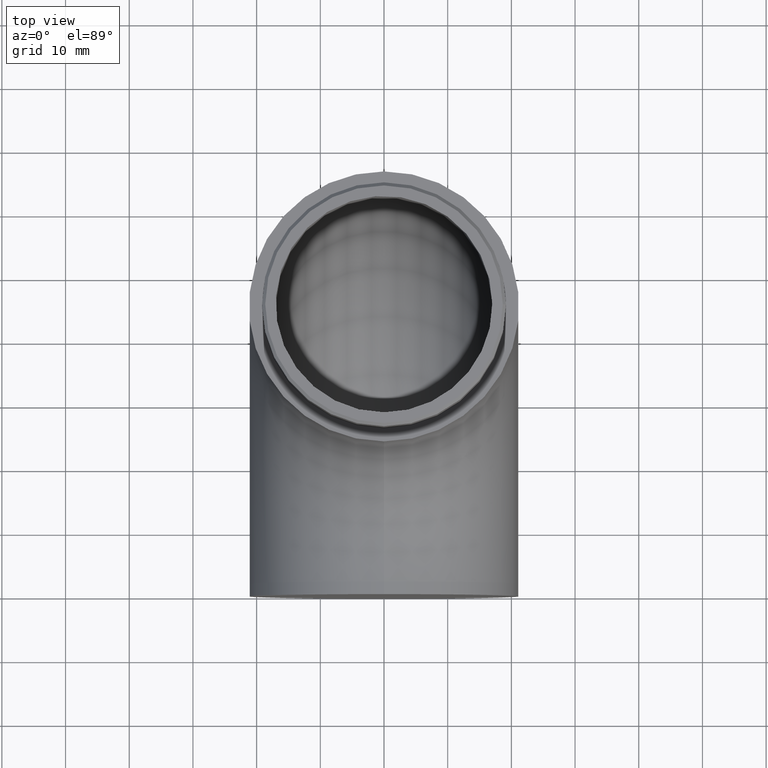
[diagram: clean part render]
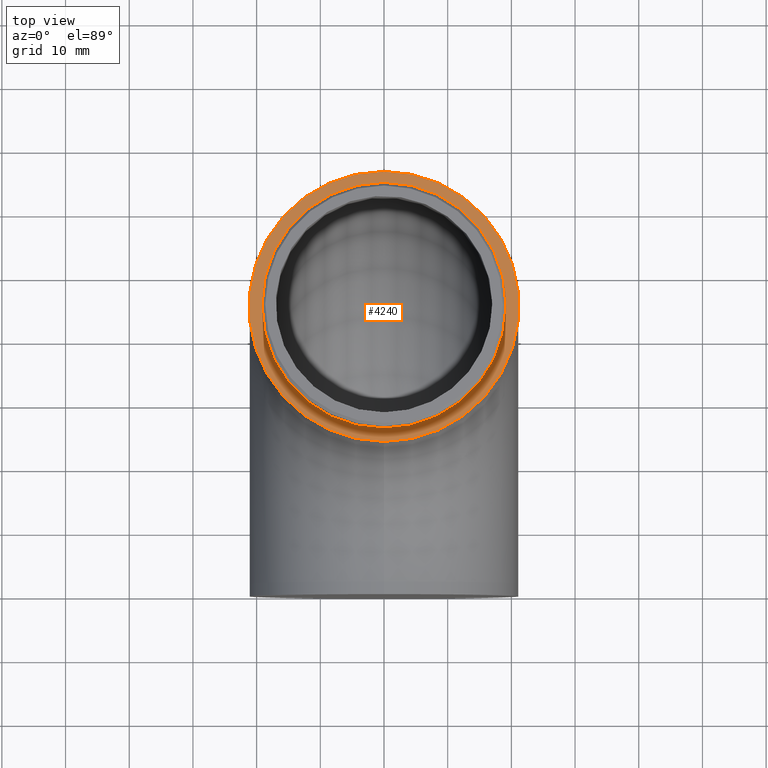
[diagram: same view with one face highlighted and labeled with its STEP entity id]
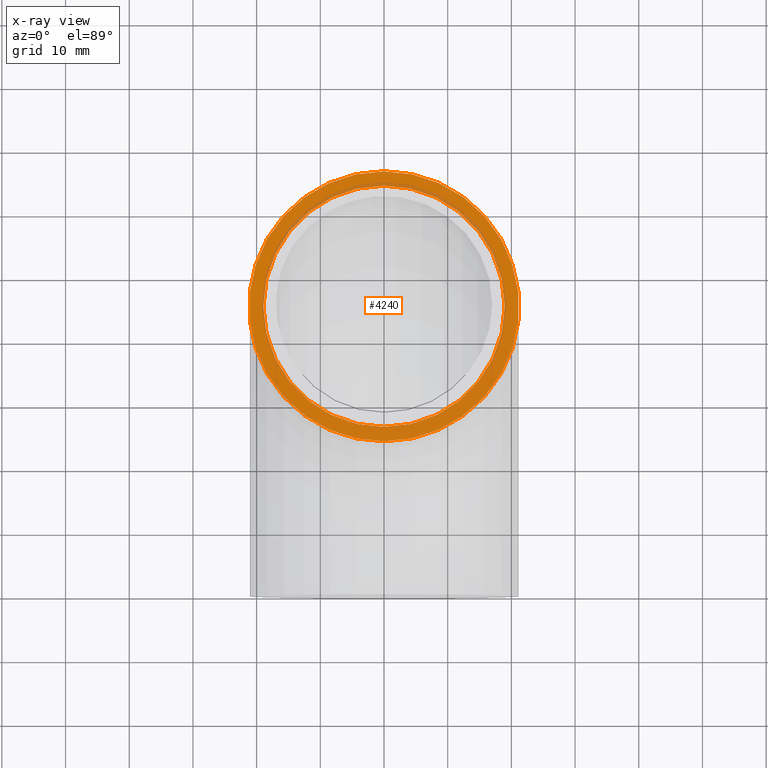
[diagram: x-ray of the same camera — body ghosted, the highlighted face saturated]
A machine part, top view. The second image highlights one B-rep face of the part: STEP entity #4240.
The next image is the same camera in x-ray: the body ghosted, the highlighted face saturated — about 10% of this face is hidden behind the body in this view.
In plain terms, the highlighted planar face has unit normal (0, -0, 1).
Its self-contained STEP definition (entity closure, byte-faithful):
#694 = CARTESIAN_POINT ( 'NONE',  ( 0.0000000000000000000, 44.80000000000000400, 42.80000000000001100 ) ) ;
#707 = CARTESIAN_POINT ( 'NONE',  ( 0.0000000000000000000, 23.60000000000000500, 42.80000000000001100 ) ) ;
#946 = AXIS2_PLACEMENT_3D ( 'NONE', #3994, #6972, #6811 ) ;
#2153 = VERTEX_POINT ( 'NONE', #707 ) ;
#2315 = EDGE_LOOP ( 'NONE', ( #5769 ) ) ;
#2596 = CARTESIAN_POINT ( 'NONE',  ( 18.95000000000000300, 44.80000000000000400, 42.80000000000000400 ) ) ;
#2715 = FACE_BOUND ( 'NONE', #2315, .T. ) ;
#2965 = ORIENTED_EDGE ( 'NONE', *, *, #7024, .T. ) ;
#3941 = AXIS2_PLACEMENT_3D ( 'NONE', #4990, #5974, #8845 ) ;
#3994 = CARTESIAN_POINT ( 'NONE',  ( 0.0000000000000000000, 44.80000000000000400, 42.80000000000000400 ) ) ;
#4061 = EDGE_CURVE ( 'NONE', #5406, #5406, #7009, .T. ) ;
#4240 = ADVANCED_FACE ( 'NONE', ( #5064, #2715 ), #4488, .T. ) ;
#4388 = AXIS2_PLACEMENT_3D ( 'NONE', #694, #8458, #11180 ) ;
#4488 = PLANE ( 'NONE',  #4388 ) ;
#4990 = CARTESIAN_POINT ( 'NONE',  ( 0.0000000000000000000, 44.80000000000000400, 42.80000000000001100 ) ) ;
#5064 = FACE_OUTER_BOUND ( 'NONE', #6464, .T. ) ;
#5406 = VERTEX_POINT ( 'NONE', #2596 ) ;
#5769 = ORIENTED_EDGE ( 'NONE', *, *, #4061, .F. ) ;
#5974 = DIRECTION ( 'NONE',  ( 0.0000000000000000000, -1.608122649676636600E-016, 1.000000000000000000 ) ) ;
#6464 = EDGE_LOOP ( 'NONE', ( #2965 ) ) ;
#6811 = DIRECTION ( 'NONE',  ( 1.000000000000000000, 0.0000000000000000000, 0.0000000000000000000 ) ) ;
#6972 = DIRECTION ( 'NONE',  ( 0.0000000000000000000, 0.0000000000000000000, 1.000000000000000000 ) ) ;
#7009 = CIRCLE ( 'NONE', #946, 18.95000000000000300 ) ;
#7024 = EDGE_CURVE ( 'NONE', #2153, #2153, #9787, .T. ) ;
#8458 = DIRECTION ( 'NONE',  ( 0.0000000000000000000, -1.608122649676636600E-016, 1.000000000000000000 ) ) ;
#8845 = DIRECTION ( 'NONE',  ( 0.0000000000000000000, -1.000000000000000000, 0.0000000000000000000 ) ) ;
#9787 = CIRCLE ( 'NONE', #3941, 21.19999999999999900 ) ;
#11180 = DIRECTION ( 'NONE',  ( 0.0000000000000000000, -1.000000000000000000, -1.608122649676636600E-016 ) ) ;